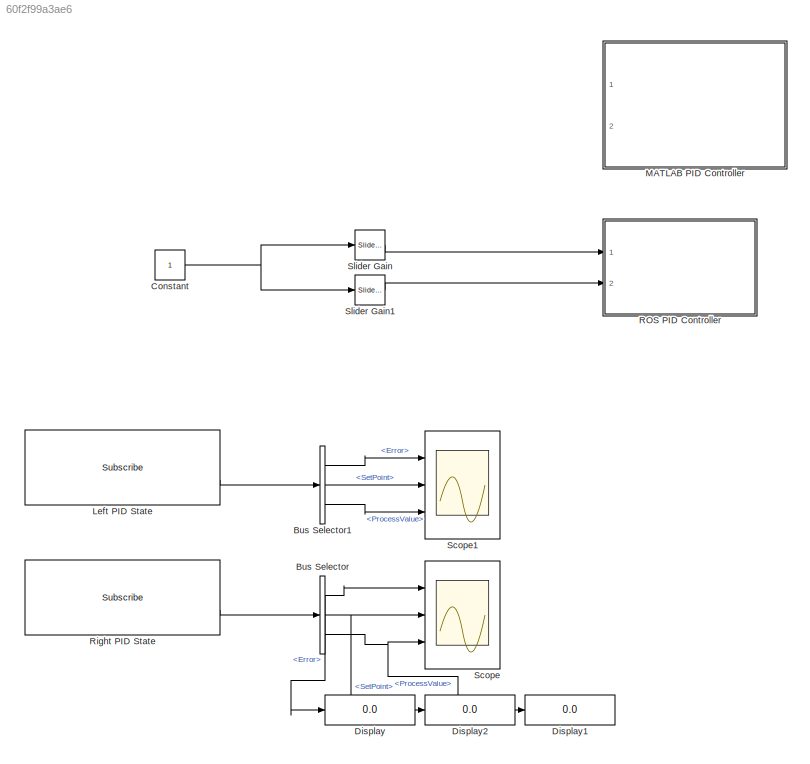
MODEL slx_60f2f99a3ae6
KIND model
CONFIG AbsTol = auto
CONFIG EnableMultiTasking = off
CONFIG FixedStep = auto
CONFIG MaxStep = auto
CONFIG MinStep = auto
CONFIG RelTol = 1e-3
CONFIG SampleTimeConstraint = Unconstrained
CONFIG Solver = VariableStepAuto
CONFIG SolverName = VariableStepAuto
CONFIG StartTime = 0.0
CONFIG StopTime = 500
BLOCK [BusSelector] Bus Selector
  Commented = on
  OutputAsBus = off
  OutputSignals = Error,SetPoint,ProcessValue
  Ports = [1, 3]
BLOCK [BusSelector] Bus Selector1
  Commented = on
  OutputAsBus = off
  OutputSignals = Error,SetPoint,ProcessValue
  Ports = [1, 3]
BLOCK [Constant] Constant
BLOCK [Display] Display
  Commented = on
  Decimation = 3
  Ports = [1]
BLOCK [Display] Display1
  Commented = on
  Decimation = 3
  Ports = [1]
BLOCK [Display] Display2
  Commented = on
  Decimation = 3
  Ports = [1]
BLOCK [Reference] Left PID State  REF=robotlib/Subscribe
  Commented = on
  Ports = [0, 2]
  SourceBlock = robotlib/Subscribe
  SourceProductBaseCode = RR
  SourceProductName = ROS Toolbox
  SourceType = ROS Subscribe
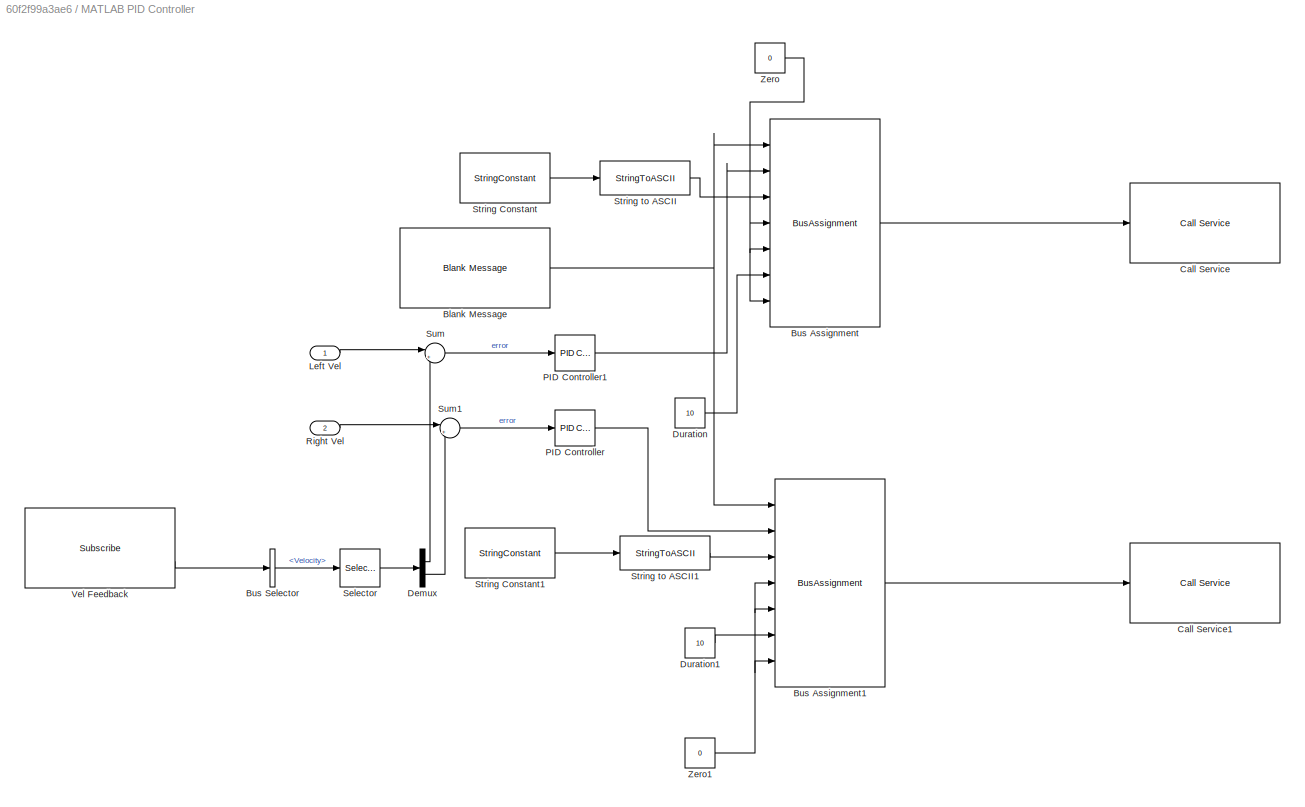
BLOCK [SubSystem] MATLAB PID Controller
  Ports = [2]
  RequestExecContextInheritance = off
BLOCK [Reference] MATLAB PID Controller/Blank Message  REF=robotlib/Blank Message
  Ports = [0, 1]
  SourceBlock = robotlib/Blank Message
  SourceProductBaseCode = RR
  SourceProductName = ROS Toolbox
  SourceType = ROS Blank Message
BLOCK [BusAssignment] MATLAB PID Controller/Bus Assignment
  AssignedSignals = Effort,JointName,StartTime.Sec,StartTime.Nsec,Duration.Sec,Duration.Nsec
  Ports = [7, 1]
BLOCK [BusAssignment] MATLAB PID Controller/Bus Assignment1
  AssignedSignals = Effort,JointName,StartTime.Sec,StartTime.Nsec,Duration.Sec,Duration.Nsec
  Ports = [7, 1]
BLOCK [BusSelector] MATLAB PID Controller/Bus Selector
  OutputAsBus = off
  OutputSignals = Velocity
  Ports = [1, 1]
BLOCK [Reference] MATLAB PID Controller/Call Service  REF=robotlib/Call Service
  Ports = [1, 2]
  SourceBlock = robotlib/Call Service
  SourceProductBaseCode = RR
  SourceProductName = ROS Toolbox
  SourceType = ROS Call Service
BLOCK [Reference] MATLAB PID Controller/Call Service1  REF=robotlib/Call Service
  Ports = [1, 2]
  SourceBlock = robotlib/Call Service
  SourceProductBaseCode = RR
  SourceProductName = ROS Toolbox
  SourceType = ROS Call Service
BLOCK [Demux] MATLAB PID Controller/Demux
  DisplayOption = bar
  Outputs = 2
  Ports = [1, 2]
BLOCK [Constant] MATLAB PID Controller/Duration
  Value = 10
BLOCK [Constant] MATLAB PID Controller/Duration1
  Value = 10
BLOCK [Inport] MATLAB PID Controller/Left Vel
  IconDisplay = Port number
BLOCK [Reference] MATLAB PID Controller/PID Controller  REF=simulink/Continuous/PID Controller
  Ports = [1, 1]
  SourceBlock = simulink/Continuous/PID Controller
  SourceProductBaseCode = SL
  SourceProductName = Simulink
  SourceType = PID 1dof
BLOCK [Reference] MATLAB PID Controller/PID Controller1  REF=simulink/Continuous/PID Controller
  Ports = [1, 1]
  SourceBlock = simulink/Continuous/PID Controller
  SourceProductBaseCode = SL
  SourceProductName = Simulink
  SourceType = PID 1dof
BLOCK [Inport] MATLAB PID Controller/Right Vel
  IconDisplay = Port number
  Port = 2
BLOCK [Selector] MATLAB PID Controller/Selector
  IndexOptions = Index vector (dialog)
  Indices = [1 2]
  OutputSizes = 1
  Ports = [1, 1]
BLOCK [StringConstant] MATLAB PID Controller/String Constant
  String = 'wheel_left_joint'
BLOCK [StringConstant] MATLAB PID Controller/String Constant1
  String = "wheel_right_joint"
BLOCK [StringToASCII] MATLAB PID Controller/String to ASCII
  OutputVectorSize = 128
BLOCK [StringToASCII] MATLAB PID Controller/String to ASCII1
  OutputVectorSize = 128
BLOCK [Sum] MATLAB PID Controller/Sum
  IconShape = round
  InputSameDT = off
  Inputs = |+-
  OutDataTypeStr = Inherit: Inherit via internal rule
  Ports = [2, 1]
  SaturateOnIntegerOverflow = off
BLOCK [Sum] MATLAB PID Controller/Sum1
  IconShape = round
  InputSameDT = off
  Inputs = |+-
  OutDataTypeStr = Inherit: Inherit via internal rule
  Ports = [2, 1]
  SaturateOnIntegerOverflow = off
BLOCK [Reference] MATLAB PID Controller/Vel Feedback  REF=robotlib/Subscribe
  Ports = [0, 2]
  SourceBlock = robotlib/Subscribe
  SourceProductBaseCode = RR
  SourceProductName = ROS Toolbox
  SourceType = ROS Subscribe
BLOCK [Constant] MATLAB PID Controller/Zero
  Value = 0
BLOCK [Constant] MATLAB PID Controller/Zero1
  Value = 0
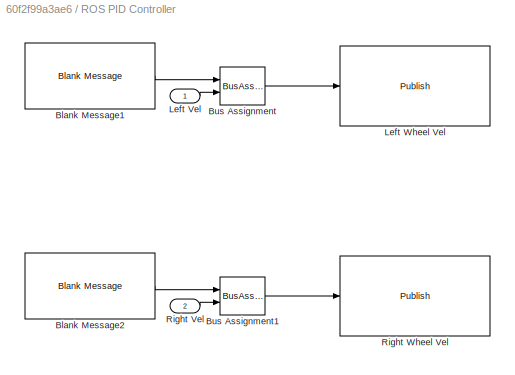
BLOCK [SubSystem] ROS PID Controller
  Ports = [2]
  RequestExecContextInheritance = off
BLOCK [Reference] ROS PID Controller/Blank Message1  REF=robotlib/Blank Message
  Ports = [0, 1]
  SourceBlock = robotlib/Blank Message
  SourceProductBaseCode = RR
  SourceProductName = ROS Toolbox
  SourceType = ROS Blank Message
BLOCK [Reference] ROS PID Controller/Blank Message2  REF=robotlib/Blank Message
  Ports = [0, 1]
  SourceBlock = robotlib/Blank Message
  SourceProductBaseCode = RR
  SourceProductName = ROS Toolbox
  SourceType = ROS Blank Message
BLOCK [BusAssignment] ROS PID Controller/Bus Assignment
  AssignedSignals = Data
  DialogController = Simulink.DDGSource_BusAssignment
  Ports = [2, 1]
BLOCK [BusAssignment] ROS PID Controller/Bus Assignment1
  AssignedSignals = Data
  DialogController = Simulink.DDGSource_BusAssignment
  Ports = [2, 1]
BLOCK [Inport] ROS PID Controller/Left Vel
  IconDisplay = Port number
BLOCK [Reference] ROS PID Controller/Left Wheel Vel  REF=robotlib/Publish
  Ports = [1]
  SourceBlock = robotlib/Publish
  SourceProductBaseCode = RR
  SourceProductName = ROS Toolbox
  SourceType = ROS Publish
BLOCK [Inport] ROS PID Controller/Right Vel
  IconDisplay = Port number
  Port = 2
BLOCK [Reference] ROS PID Controller/Right Wheel Vel  REF=robotlib/Publish
  Ports = [1]
  SourceBlock = robotlib/Publish
  SourceProductBaseCode = RR
  SourceProductName = ROS Toolbox
  SourceType = ROS Publish
BLOCK [Reference] Right PID State  REF=robotlib/Subscribe
  Commented = on
  Ports = [0, 2]
  SourceBlock = robotlib/Subscribe
  SourceProductBaseCode = RR
  SourceProductName = ROS Toolbox
  SourceType = ROS Subscribe
BLOCK [Scope] Scope
  Commented = on
  Floating = off
  NumInputPorts = 3
  Ports = [3]
  ScopeSpecificationString = Simulink.scopes.TimeScopeBlockCfg('CurrentConfiguration', extmgr.ConfigurationSet(extmgr.Configuration('Core','General UI',true),extmgr.Configuration('Core','Source UI',true),extmgr.Configuration('Sources','WiredSimulink',true),extmgr.Configuration('Visuals','Time Domain',true,'SerializedDisplays',{struct('MinYLimReal','-1.00000','MaxYLimReal','1.00000','YLabelReal','','MinYLimMag','0.00000','MaxY...<+1357ch>
BLOCK [Scope] Scope1
  Commented = on
  Floating = off
  NumInputPorts = 3
  Ports = [3]
  ScopeSpecificationString = Simulink.scopes.TimeScopeBlockCfg('CurrentConfiguration', extmgr.ConfigurationSet(extmgr.Configuration('Core','General UI',true),extmgr.Configuration('Core','Source UI',true),extmgr.Configuration('Sources','WiredSimulink',true,'DataLoggingVariableName','ScopeData1'),extmgr.Configuration('Visuals','Time Domain',true,'SerializedDisplays',{struct('MinYLimReal','-1.00000','MaxYLimReal','1.00000','YLab...<+1447ch>
BLOCK [Reference] Slider Gain  REF=simulink/Math
Operations/Slider
Gain
  Ports = [1, 1]
  SourceBlock = simulink/Math\nOperations/Slider\nGain
  SourceProductBaseCode = SL
  SourceProductName = Simulink
  SourceType = Slider Gain
BLOCK [Reference] Slider Gain1  REF=simulink/Math
Operations/Slider
Gain
  Ports = [1, 1]
  SourceBlock = simulink/Math\nOperations/Slider\nGain
  SourceProductBaseCode = SL
  SourceProductName = Simulink
  SourceType = Slider Gain
LINE Bus Selector1:1 -> Scope1:1
LINE Bus Selector1:2 -> Scope1:2
LINE Bus Selector1:3 -> Scope1:3
NET Bus Selector:1 -> Display:1, Scope:1
NET Bus Selector:2 -> Display2:1, Scope:2
NET Bus Selector:3 -> Display1:1, Scope:3
NET Constant:1 -> Slider Gain1:1, Slider Gain:1
LINE Left PID State:2 -> Bus Selector1:1
NET MATLAB PID Controller/Blank Message:1 -> MATLAB PID Controller/Bus Assignment1:1, MATLAB PID Controller/Bus Assignment:1
LINE MATLAB PID Controller/Bus Assignment1:1 -> MATLAB PID Controller/Call Service1:1
LINE MATLAB PID Controller/Bus Assignment:1 -> MATLAB PID Controller/Call Service:1
LINE MATLAB PID Controller/Bus Selector:1 -> MATLAB PID Controller/Selector:1
LINE MATLAB PID Controller/Demux:1 -> MATLAB PID Controller/Sum:2
LINE MATLAB PID Controller/Demux:2 -> MATLAB PID Controller/Sum1:2
LINE MATLAB PID Controller/Duration1:1 -> MATLAB PID Controller/Bus Assignment1:6
LINE MATLAB PID Controller/Duration:1 -> MATLAB PID Controller/Bus Assignment:6
LINE MATLAB PID Controller/Left Vel:1 -> MATLAB PID Controller/Sum:1
LINE MATLAB PID Controller/PID Controller1:1 -> MATLAB PID Controller/Bus Assignment:2
LINE MATLAB PID Controller/PID Controller:1 -> MATLAB PID Controller/Bus Assignment1:2
LINE MATLAB PID Controller/Right Vel:1 -> MATLAB PID Controller/Sum1:1
LINE MATLAB PID Controller/Selector:1 -> MATLAB PID Controller/Demux:1
LINE MATLAB PID Controller/String Constant1:1 -> MATLAB PID Controller/String to ASCII1:1
LINE MATLAB PID Controller/String Constant:1 -> MATLAB PID Controller/String to ASCII:1
LINE MATLAB PID Controller/String to ASCII1:1 -> MATLAB PID Controller/Bus Assignment1:3
LINE MATLAB PID Controller/String to ASCII:1 -> MATLAB PID Controller/Bus Assignment:3
LINE MATLAB PID Controller/Sum1:1 -> MATLAB PID Controller/PID Controller:1
LINE MATLAB PID Controller/Sum:1 -> MATLAB PID Controller/PID Controller1:1
LINE MATLAB PID Controller/Vel Feedback:2 -> MATLAB PID Controller/Bus Selector:1
NET MATLAB PID Controller/Zero1:1 -> MATLAB PID Controller/Bus Assignment1:4, MATLAB PID Controller/Bus Assignment1:5, MATLAB PID Controller/Bus Assignment1:7
NET MATLAB PID Controller/Zero:1 -> MATLAB PID Controller/Bus Assignment:4, MATLAB PID Controller/Bus Assignment:5, MATLAB PID Controller/Bus Assignment:7
LINE ROS PID Controller/Blank Message1:1 -> ROS PID Controller/Bus Assignment:1
LINE ROS PID Controller/Blank Message2:1 -> ROS PID Controller/Bus Assignment1:1
LINE ROS PID Controller/Bus Assignment1:1 -> ROS PID Controller/Right Wheel Vel:1
LINE ROS PID Controller/Bus Assignment:1 -> ROS PID Controller/Left Wheel Vel:1
LINE ROS PID Controller/Left Vel:1 -> ROS PID Controller/Bus Assignment:2
LINE ROS PID Controller/Right Vel:1 -> ROS PID Controller/Bus Assignment1:2
LINE Right PID State:2 -> Bus Selector:1
LINE Slider Gain1:1 -> ROS PID Controller:2
LINE Slider Gain:1 -> ROS PID Controller:1
note: NET lines group one-source signal fan-out (src -> all destinations, sorted); 1:1 wires keep LINE
